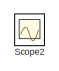
[diagram: root canvas - part 1/3, top left region]
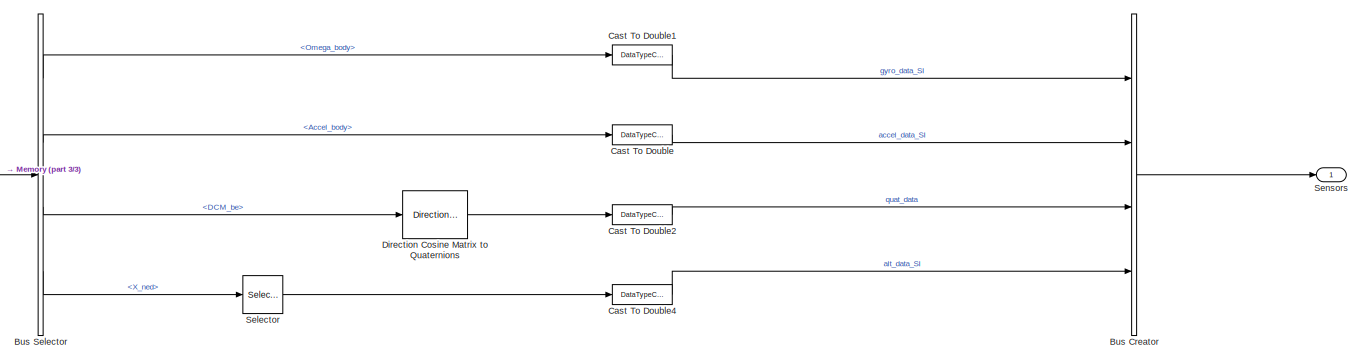
[diagram: root canvas - part 2/3, full width, bottom band]
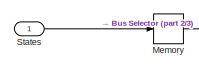
[diagram: root canvas - part 3/3, bottom left region]
MODEL slx_6712dde6ba8e
KIND model
CONFIG AbsTol = auto
CONFIG EnableMultiTasking = off
CONFIG FixedStep = Ts
CONFIG MaxStep = auto
CONFIG MinStep = auto
CONFIG RelTol = 1e-3
CONFIG SampleTimeConstraint = Unconstrained
CONFIG SolverName = FixedStepAuto
CONFIG StartTime = 0.0
CONFIG StopTime = 10.0
BLOCK [BusCreator] Bus Creator
  DisplayOption = bar
  InheritFromInputs = on
  Inputs = 4
  OutDataTypeStr = Bus: sensor_data_t
  Ports = [4, 1]
BLOCK [BusSelector] Bus Selector
  OutputSignals = Omega_body,Accel_body,DCM_be,X_ned
  Ports = [1, 4]
BLOCK [DataTypeConversion] Cast To Double
  OutDataTypeStr = single
  RndMeth = Floor
  SaturateOnIntegerOverflow = off
BLOCK [DataTypeConversion] Cast To Double1
  OutDataTypeStr = single
  RndMeth = Floor
  SaturateOnIntegerOverflow = off
BLOCK [DataTypeConversion] Cast To Double2
  OutDataTypeStr = single
  RndMeth = Floor
  SaturateOnIntegerOverflow = off
BLOCK [DataTypeConversion] Cast To Double4
  OutDataTypeStr = single
  RndMeth = Floor
  SaturateOnIntegerOverflow = off
BLOCK [Reference] Direction Cosine Matrix to Quaternions  REF=sharedtransform/Direction Cosine Matrix 
to Quaternions
  Ports = [1, 1]
  SourceBlock = sharedtransform/Direction Cosine Matrix \nto Quaternions
  SourceProductBaseCode = AE,PW,MT,UV,VE,VP
  SourceType = DCM2Quaternion
BLOCK [Memory] Memory
  InheritSampleTime = on
  InitialCondition = States
BLOCK [Scope] Scope2
  Floating = off
  IOType = viewer
  NumInputPorts = 1
  Ports = []
  ScopeSpecificationString = Simulink.scopes.TimeScopeBlockCfg('CurrentConfiguration', extmgr.ConfigurationSet(extmgr.Configuration('Core','General UI',true),extmgr.Configuration('Core','Source UI',true),extmgr.Configuration('Sources','WiredSimulink',true,'DataLoggingVariableName','ScopeData2'),extmgr.Configuration('Visuals','Time Domain',true,'SerializedDisplays',{struct('MinYLimReal','-0.17959','MaxYLimReal','0.26865','YLab...<+1550ch>
BLOCK [Selector] Selector
  IndexOptions = Index vector (dialog)
  Indices = [3]
  InputPortWidth = 3
  OutputSizes = 1
  Ports = [1, 1]
BLOCK [Outport] Sensors
  OutDataTypeStr = Bus: sensor_data_t
BLOCK [Inport] States
  OutDataTypeStr = Bus: StatesBus
LINE Bus Creator:1 -> Sensors:1
LINE Bus Selector:1 -> Cast To Double1:1
LINE Bus Selector:2 -> Cast To Double:1
LINE Bus Selector:3 -> Direction Cosine Matrix to Quaternions:1
LINE Bus Selector:4 -> Selector:1
LINE Cast To Double1:1 -> Bus Creator:1
LINE Cast To Double2:1 -> Bus Creator:3
LINE Cast To Double4:1 -> Bus Creator:4
LINE Cast To Double:1 -> Bus Creator:2
LINE Direction Cosine Matrix to Quaternions:1 -> Cast To Double2:1
LINE Memory:1 -> Bus Selector:1
LINE Selector:1 -> Cast To Double4:1
LINE States:1 -> Memory:1
